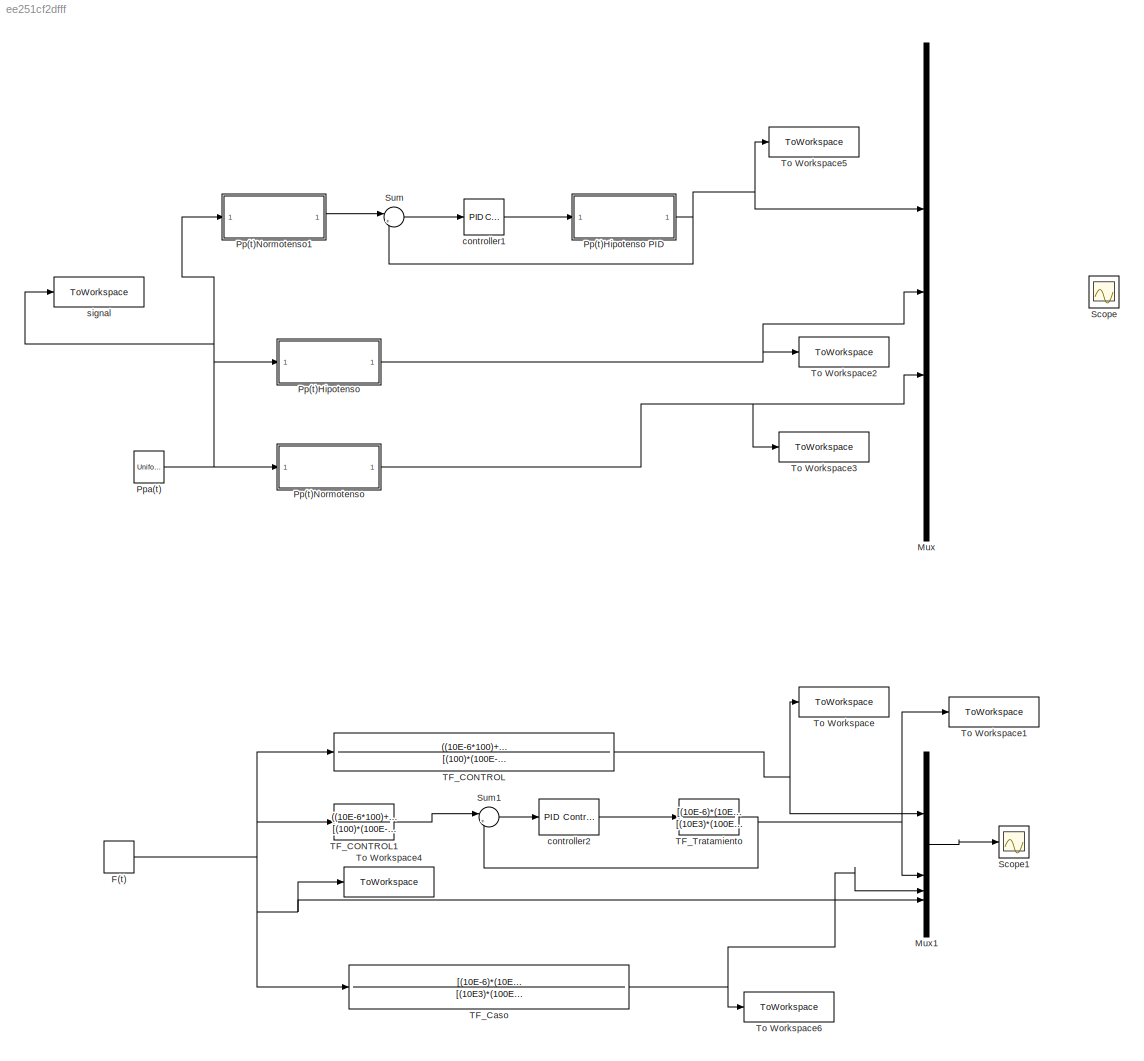
MODEL slx_ee251cf2dfff
KIND model
CONFIG AbsTol = auto
CONFIG EnableMultiTasking = off
CONFIG FixedStep = auto
CONFIG MaxStep = auto
CONFIG MinStep = auto
CONFIG RelTol = 1e-3
CONFIG SampleTimeConstraint = Unconstrained
CONFIG SolverName = VariableStepAuto
CONFIG StartTime = 0.0
CONFIG StopTime = 10.0
BLOCK [DiscretePulseGenerator] F(t)
  Period = 10
  PhaseDelay = 1
  PulseType = Time based
  PulseWidth = 10
BLOCK [Mux] Mux
  DisplayOption = bar
  Inputs = 5
BLOCK [Mux] Mux1
  DisplayOption = bar
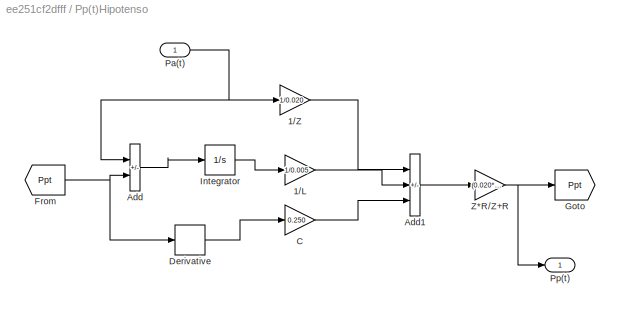
BLOCK [SubSystem] Pp(t)Hipotenso
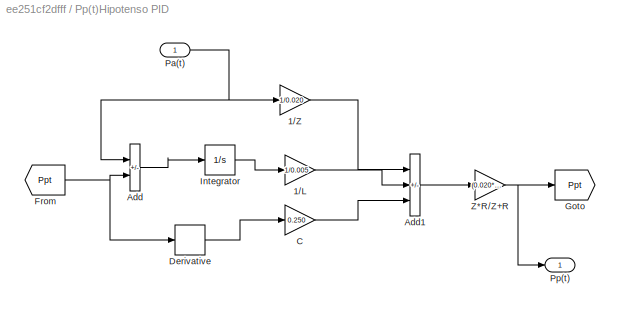
BLOCK [SubSystem] Pp(t)Hipotenso PID
BLOCK [Gain] Pp(t)Hipotenso PID/1//L
  Gain = 1/0.005
BLOCK [Gain] Pp(t)Hipotenso PID/1//Z
  Gain = 1/0.020
BLOCK [Sum] Pp(t)Hipotenso PID/Add
  IconShape = rectangular
  Inputs = +-
BLOCK [Sum] Pp(t)Hipotenso PID/Add1
  IconShape = rectangular
  Inputs = ++-
BLOCK [Gain] Pp(t)Hipotenso PID/C
  Gain = 0.250
BLOCK [Derivative] Pp(t)Hipotenso PID/Derivative
BLOCK [From] Pp(t)Hipotenso PID/From
  GotoTag = Ppt
BLOCK [Goto] Pp(t)Hipotenso PID/Goto
  GotoTag = Ppt
BLOCK [Integrator] Pp(t)Hipotenso PID/Integrator
BLOCK [Inport] Pp(t)Hipotenso PID/Pa(t)
BLOCK [Outport] Pp(t)Hipotenso PID/Pp(t)
BLOCK [Gain] Pp(t)Hipotenso PID/Z*R//Z+R
  Gain = (0.020*0.600)/(0.020+0.600)
BLOCK [Gain] Pp(t)Hipotenso/1//L
  Gain = 1/0.005
BLOCK [Gain] Pp(t)Hipotenso/1//Z
  Gain = 1/0.020
BLOCK [Sum] Pp(t)Hipotenso/Add
  IconShape = rectangular
  Inputs = +-
BLOCK [Sum] Pp(t)Hipotenso/Add1
  IconShape = rectangular
  Inputs = ++-
BLOCK [Gain] Pp(t)Hipotenso/C
  Gain = 0.250
BLOCK [Derivative] Pp(t)Hipotenso/Derivative
BLOCK [From] Pp(t)Hipotenso/From
  GotoTag = Ppt
BLOCK [Goto] Pp(t)Hipotenso/Goto
  GotoTag = Ppt
BLOCK [Integrator] Pp(t)Hipotenso/Integrator
BLOCK [Inport] Pp(t)Hipotenso/Pa(t)
BLOCK [Outport] Pp(t)Hipotenso/Pp(t)
BLOCK [Gain] Pp(t)Hipotenso/Z*R//Z+R
  Gain = (0.020*0.600)/(0.020+0.600)
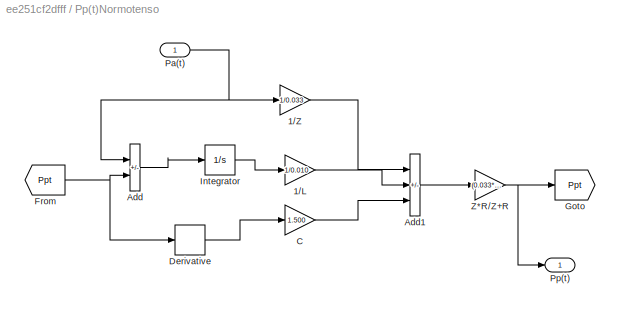
BLOCK [SubSystem] Pp(t)Normotenso
BLOCK [Gain] Pp(t)Normotenso/1//L
  Gain = 1/0.010
BLOCK [Gain] Pp(t)Normotenso/1//Z
  Gain = 1/0.033
BLOCK [Sum] Pp(t)Normotenso/Add
  IconShape = rectangular
  Inputs = +-
BLOCK [Sum] Pp(t)Normotenso/Add1
  IconShape = rectangular
  Inputs = ++-
BLOCK [Gain] Pp(t)Normotenso/C
  Gain = 1.500
BLOCK [Derivative] Pp(t)Normotenso/Derivative
BLOCK [From] Pp(t)Normotenso/From
  GotoTag = Ppt
BLOCK [Goto] Pp(t)Normotenso/Goto
  GotoTag = Ppt
BLOCK [Integrator] Pp(t)Normotenso/Integrator
BLOCK [Inport] Pp(t)Normotenso/Pa(t)
BLOCK [Outport] Pp(t)Normotenso/Pp(t)
BLOCK [Gain] Pp(t)Normotenso/Z*R//Z+R
  Gain = (0.033*0.950)/(0.033+0.950)
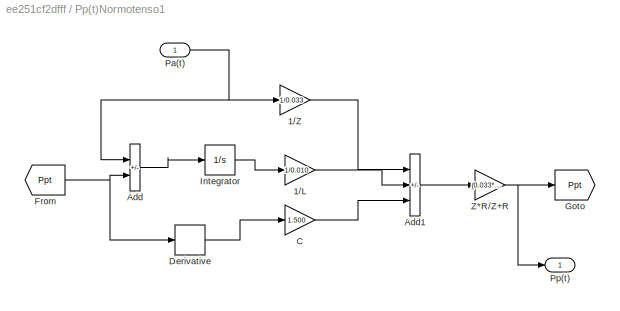
BLOCK [SubSystem] Pp(t)Normotenso1
BLOCK [Gain] Pp(t)Normotenso1/1//L
  Gain = 1/0.010
BLOCK [Gain] Pp(t)Normotenso1/1//Z
  Gain = 1/0.033
BLOCK [Sum] Pp(t)Normotenso1/Add
  IconShape = rectangular
  Inputs = +-
BLOCK [Sum] Pp(t)Normotenso1/Add1
  IconShape = rectangular
  Inputs = ++-
BLOCK [Gain] Pp(t)Normotenso1/C
  Gain = 1.500
BLOCK [Derivative] Pp(t)Normotenso1/Derivative
BLOCK [From] Pp(t)Normotenso1/From
  GotoTag = Ppt
BLOCK [Goto] Pp(t)Normotenso1/Goto
  GotoTag = Ppt
BLOCK [Integrator] Pp(t)Normotenso1/Integrator
BLOCK [Inport] Pp(t)Normotenso1/Pa(t)
BLOCK [Outport] Pp(t)Normotenso1/Pp(t)
BLOCK [Gain] Pp(t)Normotenso1/Z*R//Z+R
  Gain = (0.033*0.950)/(0.033+0.950)
BLOCK [UniformRandomNumber] Ppa(t)
  Minimum = -0.2
  SampleTime = 0.5
  Seed = 106
BLOCK [Scope] Scope
  Floating = off
  GraphicalSettings = {"GraphicalSettings":{"LegacySettings":true,"Style":{"Style":{"CurrentConfiguration":"extmgr.ConfigurationSet","MinimizeControls":"false","PlotType":"Auto","Version":"2023a"}}}}
  NumInputPorts = 1
  WasSavedAsWebScope = on
BLOCK [Scope] Scope1
  ActiveDisplayYMaximum = 1.2530462249099128
  ActiveDisplayYMinimum = -0.12525889931530931
  ContainerLayout = {"WindowBounds":[-9578,1505,948,564]}
  DataLoggingVariableName = ScopeData1
  Floating = off
  GraphicalSettings = {"Style":{"BackgroundColor":[0.12941176470588237,0.12941176470588237,0.12941176470588237],"AxesColor":[0.07058823529411765,0.07058823529411765,0.07058823529411765],"LabelsColor":[0.8509803921568627,0.8509803921568627,0.8509803921568627],"PreserveColors":false,"Visible":[true,true,true,true],"LineStyle":["-","-","-","-"],"LineWidth":[1.5,1.5,1.5,1.5],"BarWidth":[0.9,0.9,0.9,0.9],"LineColor":["auto"...<+2313ch>
  MultipleDisplayCache = [{"MaxYLimMag":1.1250163377982059,"MaxYLimReal":1.2530462249099128,"MinYLimMag":0,"MinYLimReal":-0.12525889931530931,"PlotAsMagnitudePhase":false,"ShowGrid":true,"ShowLegend":false,"Title":"%<SignalLabel>","YLabel":""}]
  NumInputPorts = 1
  Visible = on
  WasSavedAsWebScope = on
  WindowPosition = [422.000000,136.000000,949.000000,566.000000,]
BLOCK [Sum] Sum
  Inputs = |+-
BLOCK [Sum] Sum1
  Inputs = |+-
BLOCK [TransferFcn] TF_CONTROL
  Denominator = [(100)*(100E-6+(10E-6)),1]
  Numerator = ((10E-6*100)+1-0.25)
BLOCK [TransferFcn] TF_CONTROL1
  Denominator = [(100)*(100E-6+(10E-6)),1]
  Numerator = ((10E-6*100)+1-0.25)
BLOCK [TransferFcn] TF_Caso
  Denominator = [(10E3)*(100E-6+(10E-6)),1]
  Numerator = [(10E-6)*(10E3),+1-0.25]
BLOCK [TransferFcn] TF_Tratamiento
  Denominator = [(10E3)*(100E-6+(10E-6)),1]
  Numerator = [(10E-6)*(10E3),+1-0.25]
BLOCK [ToWorkspace] To Workspace
  FixptAsFi = on
  MaxDataPoints = inf
  SampleTime = -1
  Save2DSignal = 2-D array (concatenate along first dimension)
  VariableName = Fs1
BLOCK [ToWorkspace] To Workspace1
  FixptAsFi = on
  MaxDataPoints = inf
  SampleTime = -1
  Save2DSignal = 2-D array (concatenate along first dimension)
  VariableName = Fs3
BLOCK [ToWorkspace] To Workspace2
  FixptAsFi = on
  MaxDataPoints = inf
  SampleTime = -1
  VariableName = Pp2
BLOCK [ToWorkspace] To Workspace3
  FixptAsFi = on
  MaxDataPoints = inf
  SampleTime = -1
  VariableName = Pp3
BLOCK [ToWorkspace] To Workspace4
  FixptAsFi = on
  MaxDataPoints = inf
  SampleTime = -1
  Save2DSignal = 2-D array (concatenate along first dimension)
  VariableName = F
BLOCK [ToWorkspace] To Workspace5
  FixptAsFi = on
  MaxDataPoints = inf
  SampleTime = -1
  VariableName = Pp0
BLOCK [ToWorkspace] To Workspace6
  FixptAsFi = on
  MaxDataPoints = inf
  SampleTime = -1
  Save2DSignal = 2-D array (concatenate along first dimension)
  VariableName = Fs2
BLOCK [Reference] controller1  REF=slpidlib/PID Controller
  LibrarySourceBlock = simulink/Continuous/PID Controller
  SourceBlock = slpidlib/PID Controller
  SourceType = PID 1dof
BLOCK [Reference] controller2  REF=slpidlib/PID Controller
  LibrarySourceBlock = simulink/Continuous/PID Controller
  SourceBlock = slpidlib/PID Controller
  SourceType = PID 1dof
BLOCK [ToWorkspace] signal
  FixptAsFi = on
  MaxDataPoints = inf
  SampleTime = -1
  VariableName = Ppa
NET F(t):1 -> Mux1:4, TF_CONTROL1:1, TF_CONTROL:1, TF_Caso:1, To Workspace4:1
LINE Mux1:1 -> Scope1:1
LINE Pp(t)Hipotenso PID/1//L:1 -> Pp(t)Hipotenso PID/Add1:2
LINE Pp(t)Hipotenso PID/1//Z:1 -> Pp(t)Hipotenso PID/Add1:1
LINE Pp(t)Hipotenso PID/Add1:1 -> Pp(t)Hipotenso PID/Z*R//Z+R:1
LINE Pp(t)Hipotenso PID/Add:1 -> Pp(t)Hipotenso PID/Integrator:1
LINE Pp(t)Hipotenso PID/C:1 -> Pp(t)Hipotenso PID/Add1:3
LINE Pp(t)Hipotenso PID/Derivative:1 -> Pp(t)Hipotenso PID/C:1
NET Pp(t)Hipotenso PID/From:1 -> Pp(t)Hipotenso PID/Add:2, Pp(t)Hipotenso PID/Derivative:1
LINE Pp(t)Hipotenso PID/Integrator:1 -> Pp(t)Hipotenso PID/1//L:1
NET Pp(t)Hipotenso PID/Pa(t):1 -> Pp(t)Hipotenso PID/1//Z:1, Pp(t)Hipotenso PID/Add:1
NET Pp(t)Hipotenso PID/Z*R//Z+R:1 -> Pp(t)Hipotenso PID/Goto:1, Pp(t)Hipotenso PID/Pp(t):1
NET Pp(t)Hipotenso PID:1 -> Mux:2, Sum:2, To Workspace5:1
LINE Pp(t)Hipotenso/1//L:1 -> Pp(t)Hipotenso/Add1:2
LINE Pp(t)Hipotenso/1//Z:1 -> Pp(t)Hipotenso/Add1:1
LINE Pp(t)Hipotenso/Add1:1 -> Pp(t)Hipotenso/Z*R//Z+R:1
LINE Pp(t)Hipotenso/Add:1 -> Pp(t)Hipotenso/Integrator:1
LINE Pp(t)Hipotenso/C:1 -> Pp(t)Hipotenso/Add1:3
LINE Pp(t)Hipotenso/Derivative:1 -> Pp(t)Hipotenso/C:1
NET Pp(t)Hipotenso/From:1 -> Pp(t)Hipotenso/Add:2, Pp(t)Hipotenso/Derivative:1
LINE Pp(t)Hipotenso/Integrator:1 -> Pp(t)Hipotenso/1//L:1
NET Pp(t)Hipotenso/Pa(t):1 -> Pp(t)Hipotenso/1//Z:1, Pp(t)Hipotenso/Add:1
NET Pp(t)Hipotenso/Z*R//Z+R:1 -> Pp(t)Hipotenso/Goto:1, Pp(t)Hipotenso/Pp(t):1
NET Pp(t)Hipotenso:1 -> Mux:3, To Workspace2:1
LINE Pp(t)Normotenso/1//L:1 -> Pp(t)Normotenso/Add1:2
LINE Pp(t)Normotenso/1//Z:1 -> Pp(t)Normotenso/Add1:1
LINE Pp(t)Normotenso/Add1:1 -> Pp(t)Normotenso/Z*R//Z+R:1
LINE Pp(t)Normotenso/Add:1 -> Pp(t)Normotenso/Integrator:1
LINE Pp(t)Normotenso/C:1 -> Pp(t)Normotenso/Add1:3
LINE Pp(t)Normotenso/Derivative:1 -> Pp(t)Normotenso/C:1
NET Pp(t)Normotenso/From:1 -> Pp(t)Normotenso/Add:2, Pp(t)Normotenso/Derivative:1
LINE Pp(t)Normotenso/Integrator:1 -> Pp(t)Normotenso/1//L:1
NET Pp(t)Normotenso/Pa(t):1 -> Pp(t)Normotenso/1//Z:1, Pp(t)Normotenso/Add:1
NET Pp(t)Normotenso/Z*R//Z+R:1 -> Pp(t)Normotenso/Goto:1, Pp(t)Normotenso/Pp(t):1
LINE Pp(t)Normotenso1/1//L:1 -> Pp(t)Normotenso1/Add1:2
LINE Pp(t)Normotenso1/1//Z:1 -> Pp(t)Normotenso1/Add1:1
LINE Pp(t)Normotenso1/Add1:1 -> Pp(t)Normotenso1/Z*R//Z+R:1
LINE Pp(t)Normotenso1/Add:1 -> Pp(t)Normotenso1/Integrator:1
LINE Pp(t)Normotenso1/C:1 -> Pp(t)Normotenso1/Add1:3
LINE Pp(t)Normotenso1/Derivative:1 -> Pp(t)Normotenso1/C:1
NET Pp(t)Normotenso1/From:1 -> Pp(t)Normotenso1/Add:2, Pp(t)Normotenso1/Derivative:1
LINE Pp(t)Normotenso1/Integrator:1 -> Pp(t)Normotenso1/1//L:1
NET Pp(t)Normotenso1/Pa(t):1 -> Pp(t)Normotenso1/1//Z:1, Pp(t)Normotenso1/Add:1
NET Pp(t)Normotenso1/Z*R//Z+R:1 -> Pp(t)Normotenso1/Goto:1, Pp(t)Normotenso1/Pp(t):1
LINE Pp(t)Normotenso1:1 -> Sum:1
NET Pp(t)Normotenso:1 -> Mux:4, To Workspace3:1
NET Ppa(t):1 -> Pp(t)Hipotenso:1, Pp(t)Normotenso1:1, Pp(t)Normotenso:1, signal:1
LINE Sum1:1 -> controller2:1
LINE Sum:1 -> controller1:1
LINE TF_CONTROL1:1 -> Sum1:1
NET TF_CONTROL:1 -> Mux1:1, To Workspace:1
NET TF_Caso:1 -> Mux1:3, To Workspace6:1
NET TF_Tratamiento:1 -> Mux1:2, Sum1:2, To Workspace1:1
LINE controller1:1 -> Pp(t)Hipotenso PID:1
LINE controller2:1 -> TF_Tratamiento:1
note: NET lines group one-source signal fan-out (src -> all destinations, sorted); 1:1 wires keep LINE
